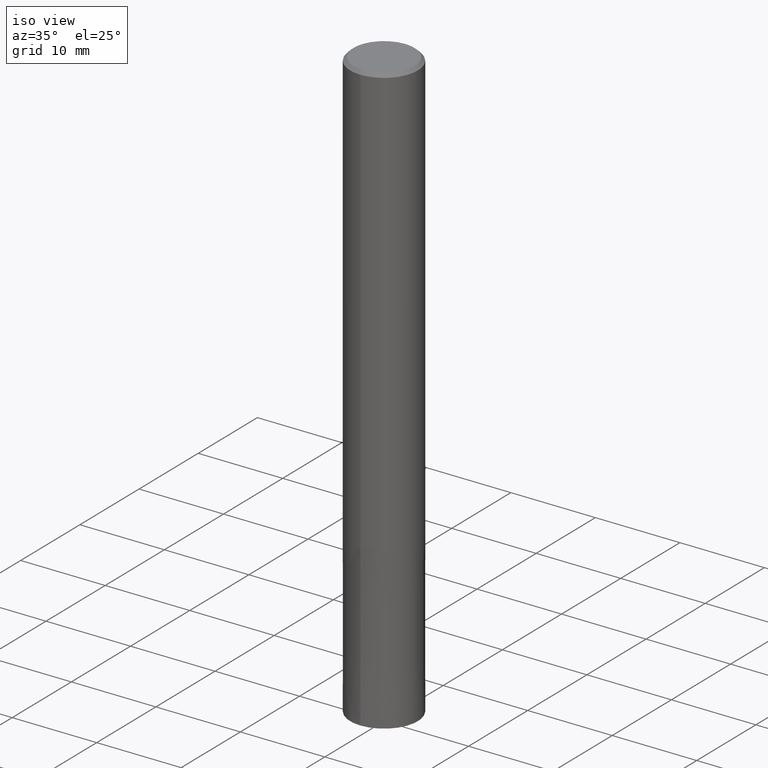
[diagram: clean part render]
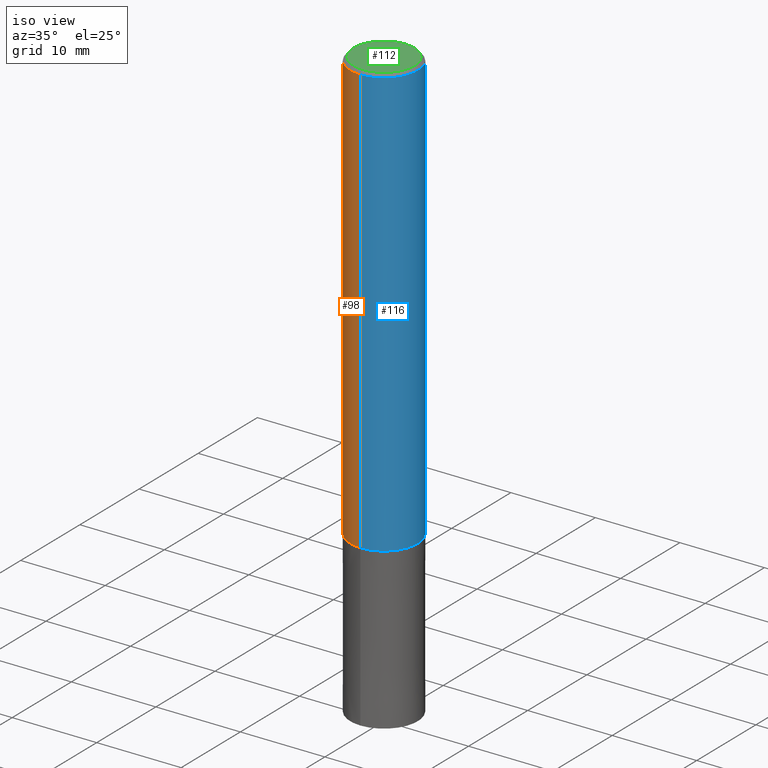
[diagram: same view with three faces highlighted in distinct colors, each labeled with its STEP entity id]
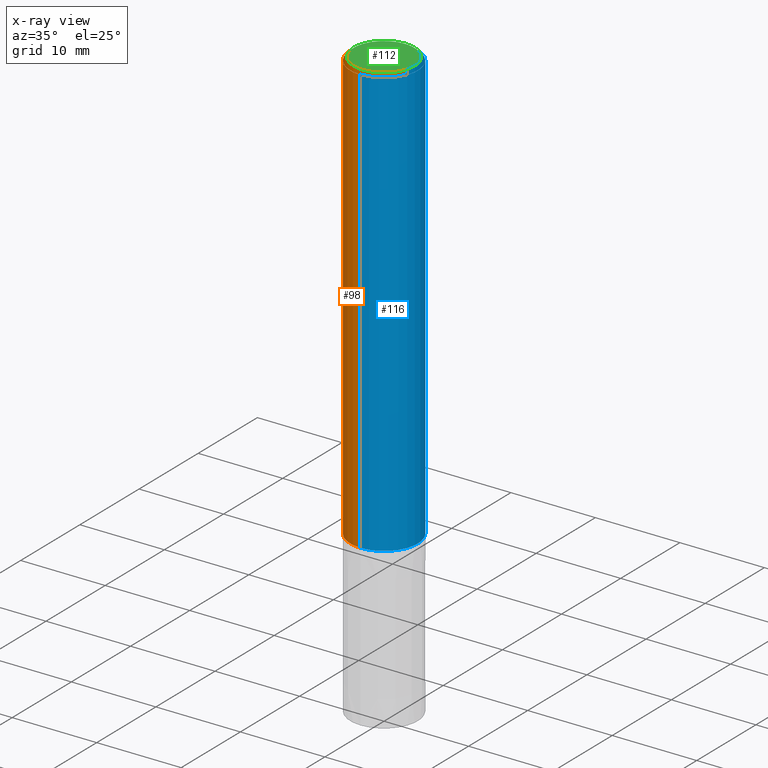
[diagram: x-ray of the same camera — body ghosted, the three highlighted faces saturated]
A machine part, iso view with three faces highlighted in distinct colors.
The next image is the same camera in x-ray (body ghosted, the three faces saturated) — at least one of them is partly hidden behind the body in this view.
Their STEP definitions:

[orange] entity #98 — the highlighted cylindrical surface (partial cylindrical patch) has radius 4 mm, axis along (-0, -0, 1).
#64=VERTEX_POINT('',#152);
#66=EDGE_CURVE('',#118,#68,#154,.T.);
#68=VERTEX_POINT('',#156);
#82=EDGE_CURVE('',#118,#64,#173,.T.);
#90=EDGE_CURVE('',#68,#92,#181,.T.);
#92=VERTEX_POINT('',#183);
#98=ADVANCED_FACE('',(#189),#190,.T.);
#104=EDGE_CURVE('',#92,#64,#197,.T.);
#118=VERTEX_POINT('',#216);
#152=CARTESIAN_POINT('',(0.0,4.0,-51.0));
#154=LINE('',#243,#244);
#156=CARTESIAN_POINT('',(4.89842541528951E-016,-4.0,-0.399999999999999));
#173=CIRCLE('',#268,4.0);
#181=CIRCLE('',#279,4.0);
#183=CARTESIAN_POINT('',(0.0,4.0,-0.399999999999999));
#189=FACE_OUTER_BOUND('',#288,.T.);
#190=CYLINDRICAL_SURFACE('',#289,4.0);
#197=LINE('',#297,#298);
#216=CARTESIAN_POINT('',(4.89842541528951E-016,-4.0,-51.0));
#243=CARTESIAN_POINT('',(4.89842541528951E-016,-4.0,-25.7));
#244=VECTOR('',#339,1.0);
#268=AXIS2_PLACEMENT_3D('',#371,#372,#373);
#279=AXIS2_PLACEMENT_3D('',#380,#381,#382);
#288=EDGE_LOOP('',(#387,#388,#389,#390));
#289=AXIS2_PLACEMENT_3D('',#391,#392,#393);
#297=CARTESIAN_POINT('',(-4.89842541528951E-016,4.0,-25.7));
#298=VECTOR('',#400,1.0);
#339=DIRECTION('',(-0.0,-0.0,1.0));
#371=CARTESIAN_POINT('',(0.0,0.0,-51.0));
#372=DIRECTION('',(0.0,0.0,-1.0));
#373=DIRECTION('',(0.0,1.0,0.0));
#380=CARTESIAN_POINT('',(0.0,0.0,-0.399999999999999));
#381=DIRECTION('',(0.0,0.0,-1.0));
#382=DIRECTION('',(0.0,1.0,0.0));
#387=ORIENTED_EDGE('',*,*,#104,.T.);
#388=ORIENTED_EDGE('',*,*,#82,.F.);
#389=ORIENTED_EDGE('',*,*,#66,.T.);
#390=ORIENTED_EDGE('',*,*,#90,.T.);
#391=CARTESIAN_POINT('',(0.0,0.0,-25.7));
#392=DIRECTION('',(-0.0,-0.0,1.0));
#393=DIRECTION('',(0.0,1.0,0.0));
#400=DIRECTION('',(0.0,0.0,-1.0));

[blue] entity #116 — the highlighted cylindrical surface (partial cylindrical patch) has radius 4 mm, axis along (-0, -0, 1).
#64=VERTEX_POINT('',#152);
#66=EDGE_CURVE('',#118,#68,#154,.T.);
#68=VERTEX_POINT('',#156);
#72=EDGE_CURVE('',#92,#68,#161,.T.);
#92=VERTEX_POINT('',#183);
#104=EDGE_CURVE('',#92,#64,#197,.T.);
#116=ADVANCED_FACE('',(#213),#214,.T.);
#118=VERTEX_POINT('',#216);
#130=EDGE_CURVE('',#64,#118,#228,.T.);
#152=CARTESIAN_POINT('',(0.0,4.0,-51.0));
#154=LINE('',#243,#244);
#156=CARTESIAN_POINT('',(4.89842541528951E-016,-4.0,-0.399999999999999));
#161=CIRCLE('',#252,4.0);
#183=CARTESIAN_POINT('',(0.0,4.0,-0.399999999999999));
#197=LINE('',#297,#298);
#213=FACE_OUTER_BOUND('',#316,.T.);
#214=CYLINDRICAL_SURFACE('',#317,4.0);
#216=CARTESIAN_POINT('',(4.89842541528951E-016,-4.0,-51.0));
#228=CIRCLE('',#337,4.0);
#243=CARTESIAN_POINT('',(4.89842541528951E-016,-4.0,-25.7));
#244=VECTOR('',#339,1.0);
#252=AXIS2_PLACEMENT_3D('',#348,#349,#350);
#297=CARTESIAN_POINT('',(-4.89842541528951E-016,4.0,-25.7));
#298=VECTOR('',#400,1.0);
#316=EDGE_LOOP('',(#425,#426,#427,#428));
#317=AXIS2_PLACEMENT_3D('',#429,#430,#431);
#337=AXIS2_PLACEMENT_3D('',#441,#442,#443);
#339=DIRECTION('',(-0.0,-0.0,1.0));
#348=CARTESIAN_POINT('',(0.0,0.0,-0.399999999999999));
#349=DIRECTION('',(0.0,0.0,-1.0));
#350=DIRECTION('',(0.0,1.0,0.0));
#400=DIRECTION('',(0.0,0.0,-1.0));
#425=ORIENTED_EDGE('',*,*,#104,.F.);
#426=ORIENTED_EDGE('',*,*,#72,.T.);
#427=ORIENTED_EDGE('',*,*,#66,.F.);
#428=ORIENTED_EDGE('',*,*,#130,.F.);
#429=CARTESIAN_POINT('',(0.0,0.0,-25.7));
#430=DIRECTION('',(-0.0,-0.0,1.0));
#431=DIRECTION('',(0.0,1.0,0.0));
#441=CARTESIAN_POINT('',(0.0,0.0,-51.0));
#442=DIRECTION('',(0.0,0.0,-1.0));
#443=DIRECTION('',(0.0,1.0,0.0));

[green] entity #112 — the highlighted planar face has unit normal (-0, 0, 1).
#62=VERTEX_POINT('',#150);
#76=EDGE_CURVE('',#62,#96,#166,.T.);
#96=VERTEX_POINT('',#187);
#112=ADVANCED_FACE('',(#208),#209,.T.);
#126=EDGE_CURVE('',#96,#62,#224,.T.);
#150=CARTESIAN_POINT('',(0.0,3.6,0.0));
#166=CIRCLE('',#258,3.6);
#187=CARTESIAN_POINT('',(4.40858287376056E-016,-3.6,0.0));
#208=FACE_OUTER_BOUND('',#311,.T.);
#209=PLANE('',#312);
#224=CIRCLE('',#333,3.6);
#258=AXIS2_PLACEMENT_3D('',#359,#360,#361);
#311=EDGE_LOOP('',(#419,#420));
#312=AXIS2_PLACEMENT_3D('',#421,#422,#423);
#333=AXIS2_PLACEMENT_3D('',#437,#438,#439);
#359=CARTESIAN_POINT('',(0.0,0.0,0.0));
#360=DIRECTION('',(0.0,0.0,-1.0));
#361=DIRECTION('',(0.0,1.0,0.0));
#419=ORIENTED_EDGE('',*,*,#76,.F.);
#420=ORIENTED_EDGE('',*,*,#126,.F.);
#421=CARTESIAN_POINT('',(0.0,1.8,0.0));
#422=DIRECTION('',(-0.0,0.0,1.0));
#423=DIRECTION('',(0.0,-1.0,0.0));
#437=CARTESIAN_POINT('',(0.0,0.0,0.0));
#438=DIRECTION('',(0.0,0.0,-1.0));
#439=DIRECTION('',(0.0,1.0,0.0));